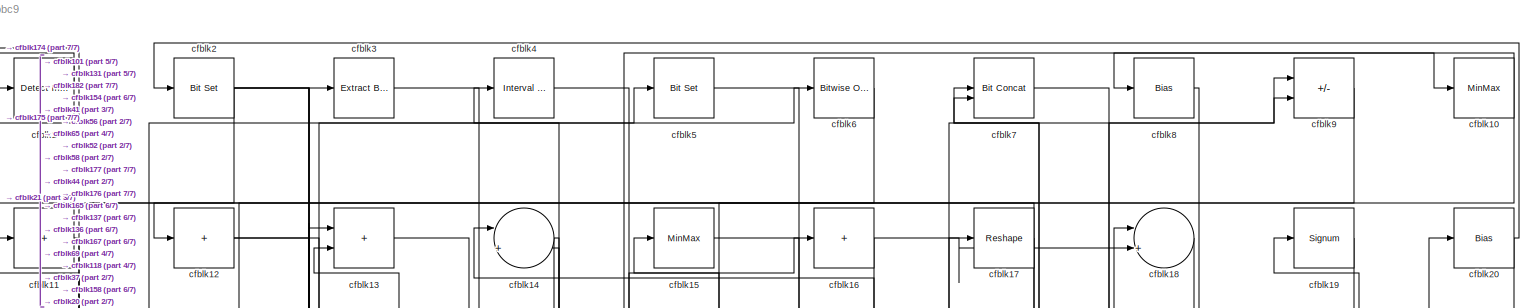
[diagram: root canvas - part 1/7, full width, top band]
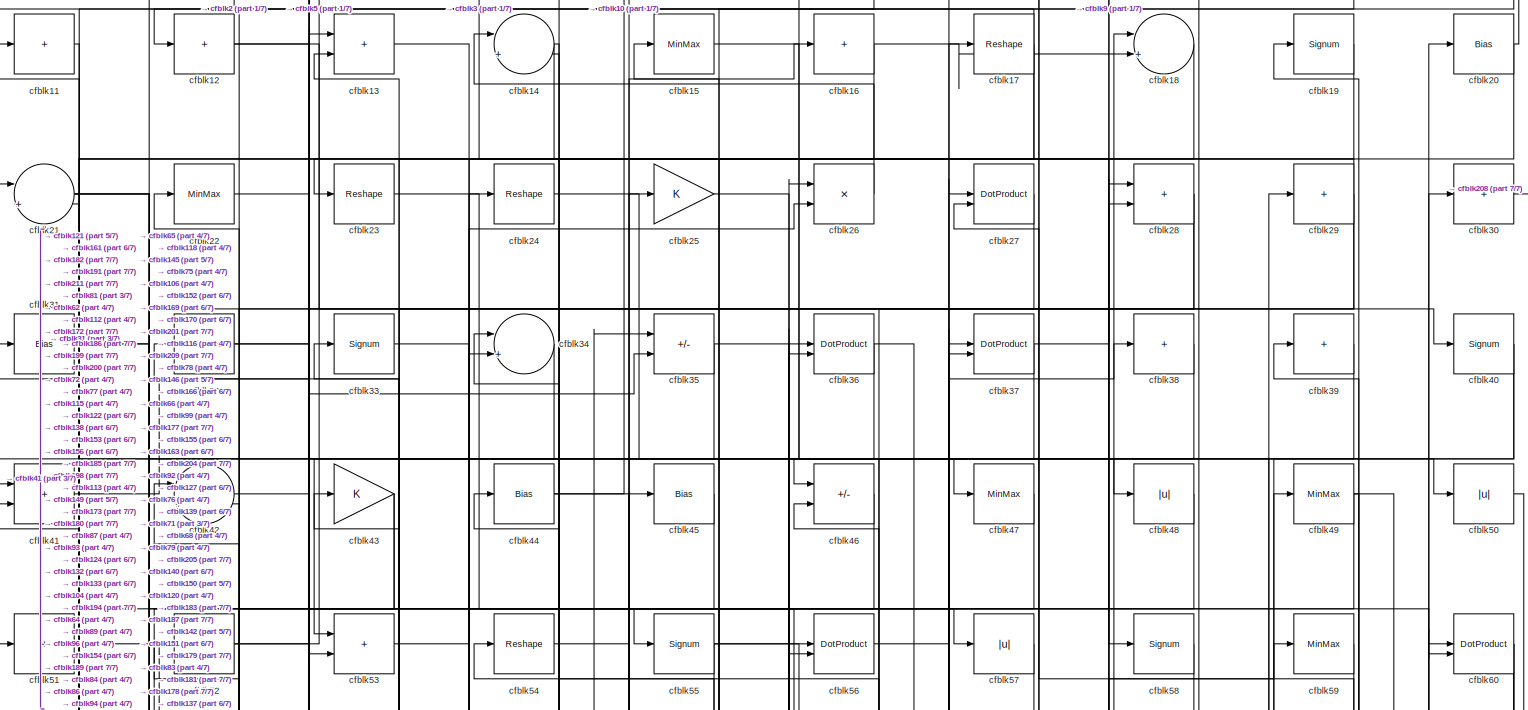
[diagram: root canvas - part 2/7, full width, top band]
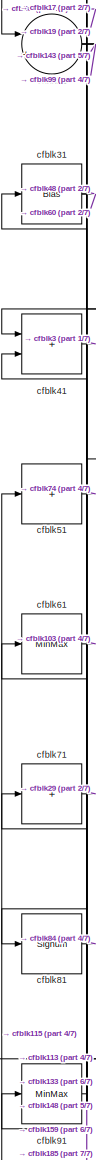
[diagram: root canvas - part 3/7, top left region]
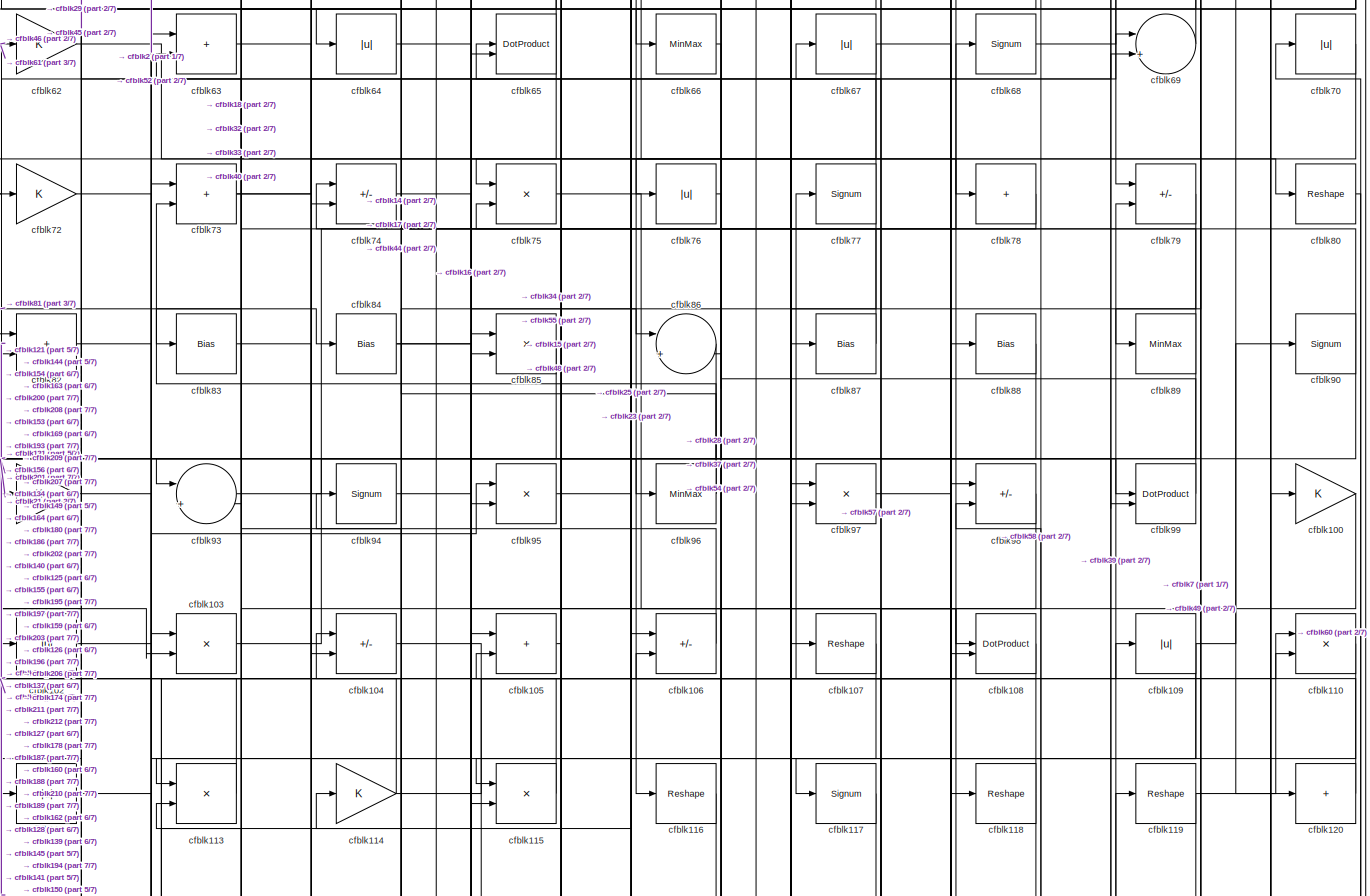
[diagram: root canvas - part 4/7, full width, middle band]
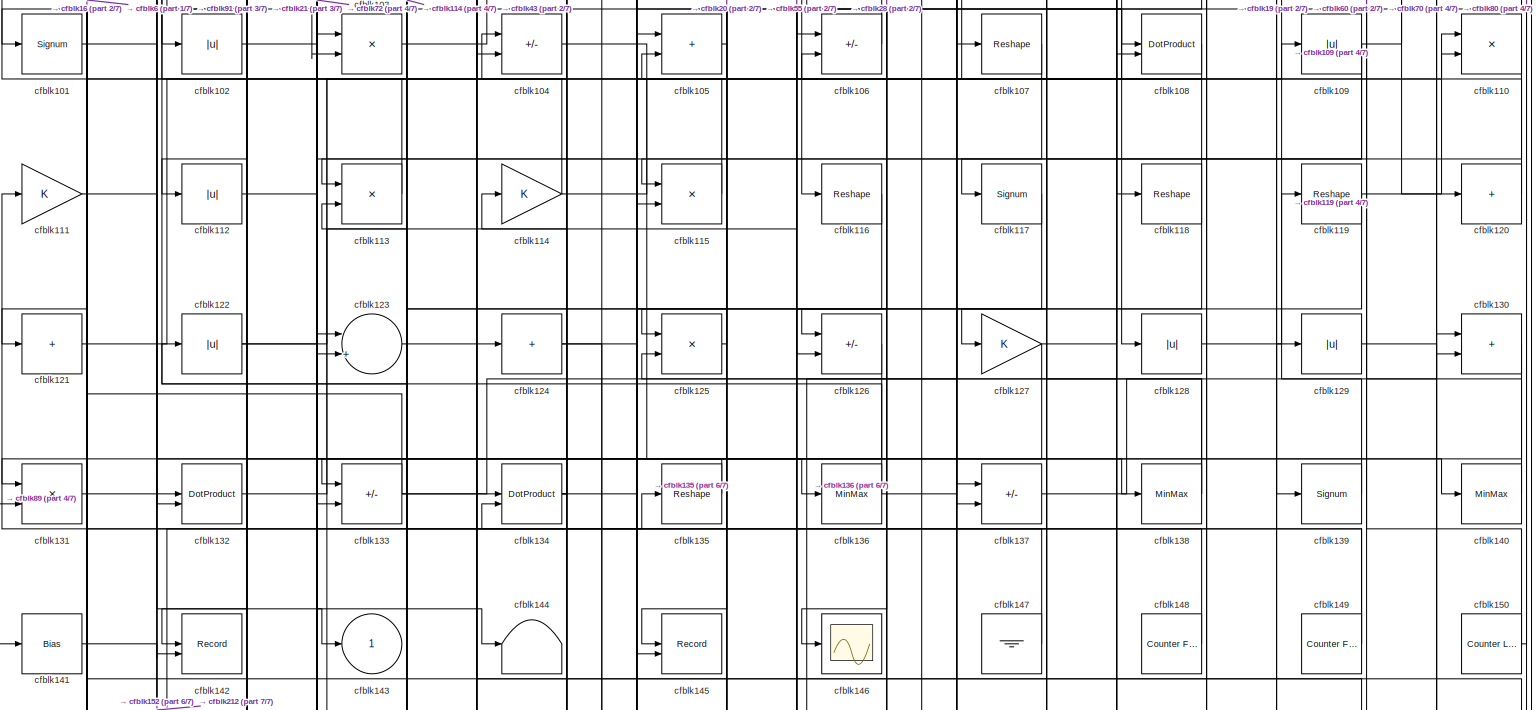
[diagram: root canvas - part 5/7, full width, middle band]
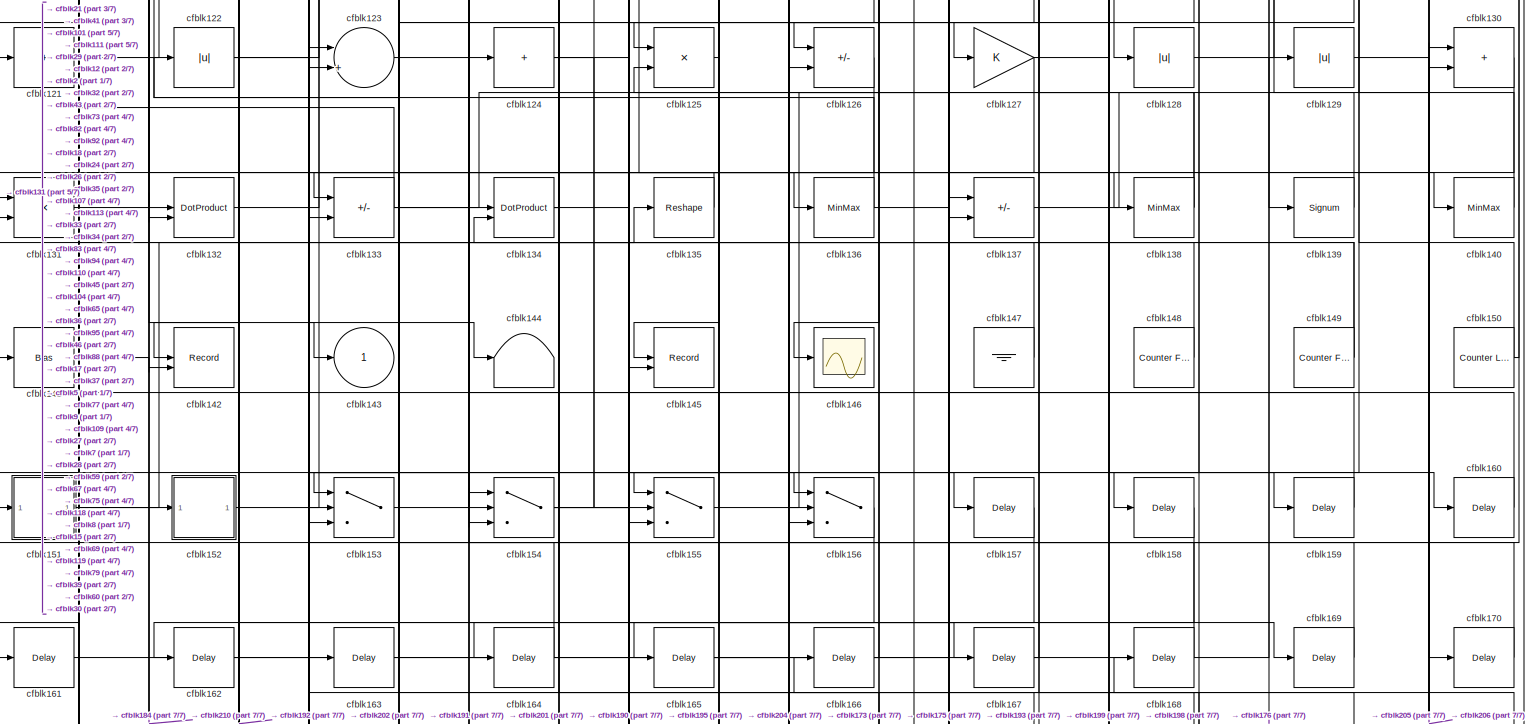
[diagram: root canvas - part 6/7, full width, middle band]
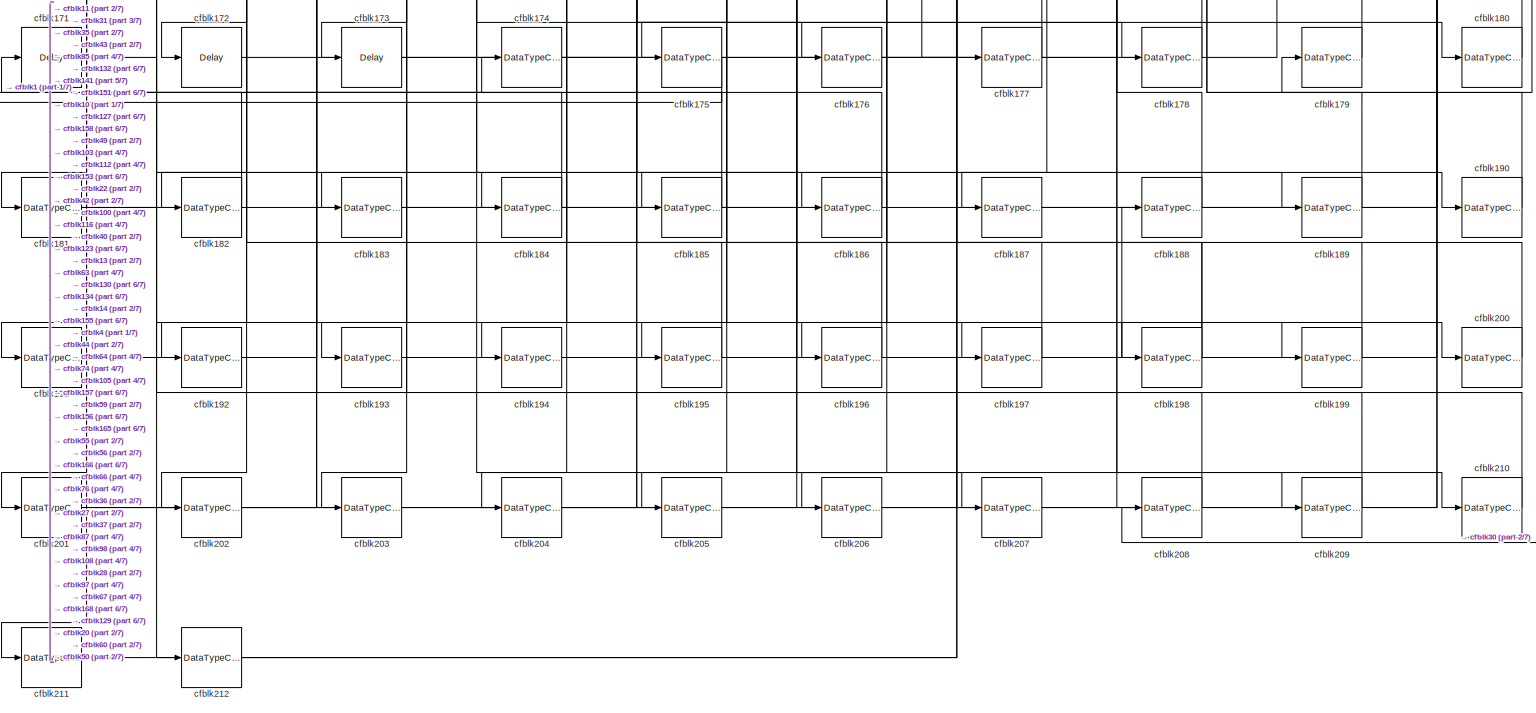
[diagram: root canvas - part 7/7, full width, bottom band]
MODEL slx_99fc0c3ebbc9
KIND model
CONFIG AbsTol = auto
CONFIG EnableMultiTasking = off
CONFIG FixedStep = auto
CONFIG MaxStep = auto
CONFIG MinStep = auto
CONFIG RelTol = 1e-3
CONFIG SampleTimeConstraint = Unconstrained
CONFIG SolverName = VariableStepAuto
CONFIG StartTime = 0.0
CONFIG StopTime = 10.0
BLOCK [Reference] cfblk1  REF=simulink/Logic and Bit
Operations/Detect
Increase
  LibrarySourceBlock = hdlsllib/Logic and Bit\nOperations/Detect\nIncrease
  SourceBlock = simulink/Logic and Bit\nOperations/Detect\nIncrease
  SourceType = Detect Increase
BLOCK [MinMax] cfblk10
BLOCK [Gain] cfblk100
BLOCK [Signum] cfblk101
BLOCK [Abs] cfblk102
  SaturateOnIntegerOverflow = off
BLOCK [Product] cfblk103
  Inputs = */
  RndMeth = Zero
  SaturateOnIntegerOverflow = on
BLOCK [Sum] cfblk104
  IconShape = rectangular
  Inputs = +-
BLOCK [Sum] cfblk105
  IconShape = rectangular
BLOCK [Sum] cfblk106
  IconShape = rectangular
  Inputs = +-
BLOCK [Reshape] cfblk107
BLOCK [DotProduct] cfblk108
  OutDataTypeStr = Inherit: Inherit via internal rule
BLOCK [Abs] cfblk109
  SaturateOnIntegerOverflow = off
BLOCK [Sum] cfblk11
  IconShape = rectangular
  Inputs = +
BLOCK [Product] cfblk110
  Inputs = */
  RndMeth = Zero
  SaturateOnIntegerOverflow = on
BLOCK [Gain] cfblk111
BLOCK [Abs] cfblk112
  SaturateOnIntegerOverflow = off
BLOCK [Product] cfblk113
  Inputs = */
  RndMeth = Zero
  SaturateOnIntegerOverflow = on
BLOCK [Gain] cfblk114
BLOCK [Product] cfblk115
  Inputs = */
  RndMeth = Zero
  SaturateOnIntegerOverflow = on
BLOCK [Reshape] cfblk116
BLOCK [Signum] cfblk117
BLOCK [Reshape] cfblk118
BLOCK [Reshape] cfblk119
BLOCK [Sum] cfblk12
  IconShape = rectangular
  Inputs = +
BLOCK [Sum] cfblk120
  IconShape = rectangular
  Inputs = +
BLOCK [Sum] cfblk121
  IconShape = rectangular
  Inputs = +
BLOCK [Abs] cfblk122
  SaturateOnIntegerOverflow = off
BLOCK [Sum] cfblk123
  Inputs = |++
BLOCK [Sum] cfblk124
  IconShape = rectangular
  Inputs = +
BLOCK [Product] cfblk125
  Inputs = */
  RndMeth = Zero
  SaturateOnIntegerOverflow = on
BLOCK [Sum] cfblk126
  IconShape = rectangular
  Inputs = +-
BLOCK [Gain] cfblk127
BLOCK [Abs] cfblk128
  SaturateOnIntegerOverflow = off
BLOCK [Abs] cfblk129
  SaturateOnIntegerOverflow = off
BLOCK [Sum] cfblk13
  IconShape = rectangular
BLOCK [Sum] cfblk130
  IconShape = rectangular
BLOCK [Product] cfblk131
  Inputs = */
  RndMeth = Zero
  SaturateOnIntegerOverflow = on
BLOCK [DotProduct] cfblk132
  OutDataTypeStr = Inherit: Inherit via internal rule
BLOCK [Sum] cfblk133
  IconShape = rectangular
  Inputs = +-
BLOCK [DotProduct] cfblk134
  OutDataTypeStr = Inherit: Inherit via internal rule
BLOCK [Reshape] cfblk135
BLOCK [MinMax] cfblk136
BLOCK [Sum] cfblk137
  IconShape = rectangular
  Inputs = +-
BLOCK [MinMax] cfblk138
BLOCK [Signum] cfblk139
BLOCK [Sum] cfblk14
  Inputs = |++
BLOCK [MinMax] cfblk140
BLOCK [Bias] cfblk141
  Bias = 0.0
  SaturateOnIntegerOverflow = off
BLOCK [Record] cfblk142
  CompatibilityTag = XY
  FileSettingsInternal = {"entries":[{"content":{"excelSettings":{"content":{},"type":"Streamout.ExcelSettings"}},"type":"Streamout.FileSettingStorage","uuid":""}],"packageUris":["http:\/\/schema.mathworks.com\/mf0\/streamout_blocks\/R2020a"],"version":"1.0"}
  Layout = [1 1]
  SignalsInternal = {"entries":[{"content":{"signals":[{"content":{"blockPath":[],"dimensions":[1],"domain":"","lineColor":"#a2142f","plots":[1],"port":1,"signalID":1193,"signalName":"XY Graph:1"},"type":"RecordBlkView.Signal","uuid":""},{"content":{"blockPath":[],"dimensions":[1],"domain":"","lineColor":"#139fff","plots":[1],"port":2,"signalID":1196,"signalName":"XY Graph:2"},"type":"RecordBlkView.Signal","uuid":""}...<+146ch>
  VisualizationBindings = {"xyplotplugin":{"info":[{"series":[{"bindingParametersList":[{"parameter":"X-Axis","signalID":1193,"signalName":"XY Graph:1"},{"parameter":"Y-Axis","signalID":1196,"signalName":"XY Graph:2"}],"seriesID":30784}],"subplotID":1}]}}
  st = -1
BLOCK [Outport] cfblk143
  VectorParamsAs1DForOutWhenUnconnected = off
BLOCK [Terminator] cfblk144
BLOCK [Record] cfblk145
  CompatibilityTag = XY
  FileSettingsInternal = {"entries":[{"content":{"excelSettings":{"content":{},"type":"Streamout.ExcelSettings"}},"type":"Streamout.FileSettingStorage","uuid":""}],"packageUris":["http:\/\/schema.mathworks.com\/mf0\/streamout_blocks\/R2020a"],"version":"1.0"}
  Layout = [1 1]
  SignalsInternal = {"entries":[{"content":{"signals":[{"content":{"blockPath":[],"dimensions":[1],"domain":"","lineColor":"#a2142f","plots":[1],"port":1,"signalID":1201,"signalName":"XY Graph:1"},"type":"RecordBlkView.Signal","uuid":""},{"content":{"blockPath":[],"dimensions":[1],"domain":"","lineColor":"#139fff","plots":[1],"port":2,"signalID":1204,"signalName":"XY Graph:2"},"type":"RecordBlkView.Signal","uuid":""}...<+146ch>
  VisualizationBindings = {"xyplotplugin":{"info":[{"series":[{"bindingParametersList":[{"parameter":"X-Axis","signalID":1201,"signalName":"XY Graph:1"},{"parameter":"Y-Axis","signalID":1204,"signalName":"XY Graph:2"}],"seriesID":31207}],"subplotID":1}]}}
  st = -1
BLOCK [Scope] cfblk146
  Floating = off
  NumInputPorts = 1
  ScopeSpecificationString = Simulink.scopes.TimeScopeBlockCfg('CurrentConfiguration', extmgr.ConfigurationSet(extmgr.Configuration('Core','General UI',true),extmgr.Configuration('Core','Source UI',true),extmgr.Configuration('Sources','WiredSimulink',true,'DataLoggingVariableName','ScopeData2','DataLoggingSaveFormat','Array','DataLoggingLimitDataPoints',true,'DataLoggingDecimation','1'),extmgr.Configuration('Visuals','Time Do...<+868ch>
BLOCK [Ground] cfblk147
BLOCK [Reference] cfblk148  REF=hdlsllib/Sources/Counter
Free-Running
  SourceBlock = hdlsllib/Sources/Counter\nFree-Running
  SourceType = Counter Free-Running
BLOCK [Reference] cfblk149  REF=hdlsllib/Sources/Counter
Free-Running
  SourceBlock = hdlsllib/Sources/Counter\nFree-Running
  SourceType = Counter Free-Running
BLOCK [MinMax] cfblk15
BLOCK [Reference] cfblk150  REF=hdlsllib/Sources/Counter
Limited
  SourceBlock = hdlsllib/Sources/Counter\nLimited
  SourceType = Counter Limited
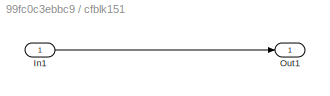
BLOCK [SubSystem] cfblk151
  LibrarySourceBlock = hdlsllib/Ports &\nSubsystems/Subsystem
BLOCK [Inport] cfblk151/In1
BLOCK [Outport] cfblk151/Out1
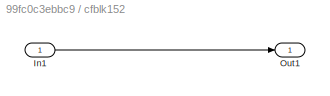
BLOCK [SubSystem] cfblk152
  LibrarySourceBlock = hdlsllib/Ports &\nSubsystems/Subsystem
BLOCK [Inport] cfblk152/In1
BLOCK [Outport] cfblk152/Out1
BLOCK [Switch] cfblk153
  InputSameDT = off
  SaturateOnIntegerOverflow = off
BLOCK [Switch] cfblk154
  InputSameDT = off
  SaturateOnIntegerOverflow = off
BLOCK [Switch] cfblk155
  InputSameDT = off
  SaturateOnIntegerOverflow = off
BLOCK [Switch] cfblk156
  InputSameDT = off
  SaturateOnIntegerOverflow = off
BLOCK [Delay] cfblk157
  InputPortMap = u0
  SampleTime = 1
BLOCK [Delay] cfblk158
  InputPortMap = u0
  SampleTime = 1
BLOCK [Delay] cfblk159
  InputPortMap = u0
  SampleTime = 1
BLOCK [Sum] cfblk16
  IconShape = rectangular
  Inputs = +
BLOCK [Delay] cfblk160
  InputPortMap = u0
  SampleTime = 1
BLOCK [Delay] cfblk161
  InputPortMap = u0
  SampleTime = 1
BLOCK [Delay] cfblk162
  InputPortMap = u0
  SampleTime = 1
BLOCK [Delay] cfblk163
  InputPortMap = u0
  SampleTime = 1
BLOCK [Delay] cfblk164
  InputPortMap = u0
  SampleTime = 1
BLOCK [Delay] cfblk165
  InputPortMap = u0
  SampleTime = 1
BLOCK [Delay] cfblk166
  InputPortMap = u0
  SampleTime = 1
BLOCK [Delay] cfblk167
  InputPortMap = u0
  SampleTime = 1
BLOCK [Delay] cfblk168
  InputPortMap = u0
  SampleTime = 1
BLOCK [Delay] cfblk169
  InputPortMap = u0
  SampleTime = 1
BLOCK [Reshape] cfblk17
BLOCK [Delay] cfblk170
  InputPortMap = u0
  SampleTime = 1
BLOCK [Delay] cfblk171
  InputPortMap = u0
  SampleTime = 1
BLOCK [Delay] cfblk172
  InputPortMap = u0
  SampleTime = 1
BLOCK [Delay] cfblk173
  InputPortMap = u0
  SampleTime = 1
BLOCK [DataTypeConversion] cfblk174
  OutDataTypeStr = uint8
  RndMeth = Floor
  SaturateOnIntegerOverflow = off
BLOCK [DataTypeConversion] cfblk175
  OutDataTypeStr = uint8
  RndMeth = Floor
  SaturateOnIntegerOverflow = off
BLOCK [DataTypeConversion] cfblk176
  OutDataTypeStr = uint8
  RndMeth = Floor
  SaturateOnIntegerOverflow = off
BLOCK [DataTypeConversion] cfblk177
  OutDataTypeStr = uint8
  RndMeth = Floor
  SaturateOnIntegerOverflow = off
BLOCK [DataTypeConversion] cfblk178
  OutDataTypeStr = uint8
  RndMeth = Floor
  SaturateOnIntegerOverflow = off
BLOCK [DataTypeConversion] cfblk179
  OutDataTypeStr = uint8
  RndMeth = Floor
  SaturateOnIntegerOverflow = off
BLOCK [Sum] cfblk18
  Inputs = |++
BLOCK [DataTypeConversion] cfblk180
  OutDataTypeStr = uint8
  RndMeth = Floor
  SaturateOnIntegerOverflow = off
BLOCK [DataTypeConversion] cfblk181
  RndMeth = Floor
  SaturateOnIntegerOverflow = off
BLOCK [DataTypeConversion] cfblk182
  OutDataTypeStr = uint8
  RndMeth = Floor
  SaturateOnIntegerOverflow = off
BLOCK [DataTypeConversion] cfblk183
  OutDataTypeStr = uint8
  RndMeth = Floor
  SaturateOnIntegerOverflow = off
BLOCK [DataTypeConversion] cfblk184
  OutDataTypeStr = uint8
  RndMeth = Floor
  SaturateOnIntegerOverflow = off
BLOCK [DataTypeConversion] cfblk185
  OutDataTypeStr = uint8
  RndMeth = Floor
  SaturateOnIntegerOverflow = off
BLOCK [DataTypeConversion] cfblk186
  OutDataTypeStr = uint8
  RndMeth = Floor
  SaturateOnIntegerOverflow = off
BLOCK [DataTypeConversion] cfblk187
  OutDataTypeStr = uint8
  RndMeth = Floor
  SaturateOnIntegerOverflow = off
BLOCK [DataTypeConversion] cfblk188
  OutDataTypeStr = uint8
  RndMeth = Floor
  SaturateOnIntegerOverflow = off
BLOCK [DataTypeConversion] cfblk189
  OutDataTypeStr = uint8
  RndMeth = Floor
  SaturateOnIntegerOverflow = off
BLOCK [Signum] cfblk19
BLOCK [DataTypeConversion] cfblk190
  OutDataTypeStr = uint8
  RndMeth = Floor
  SaturateOnIntegerOverflow = off
BLOCK [DataTypeConversion] cfblk191
  OutDataTypeStr = uint8
  RndMeth = Floor
  SaturateOnIntegerOverflow = off
BLOCK [DataTypeConversion] cfblk192
  OutDataTypeStr = uint8
  RndMeth = Floor
  SaturateOnIntegerOverflow = off
BLOCK [DataTypeConversion] cfblk193
  RndMeth = Floor
  SaturateOnIntegerOverflow = off
BLOCK [DataTypeConversion] cfblk194
  OutDataTypeStr = uint8
  RndMeth = Floor
  SaturateOnIntegerOverflow = off
BLOCK [DataTypeConversion] cfblk195
  OutDataTypeStr = uint8
  RndMeth = Floor
  SaturateOnIntegerOverflow = off
BLOCK [DataTypeConversion] cfblk196
  OutDataTypeStr = uint8
  RndMeth = Floor
  SaturateOnIntegerOverflow = off
BLOCK [DataTypeConversion] cfblk197
  OutDataTypeStr = uint8
  RndMeth = Floor
  SaturateOnIntegerOverflow = off
BLOCK [DataTypeConversion] cfblk198
  RndMeth = Floor
  SaturateOnIntegerOverflow = off
BLOCK [DataTypeConversion] cfblk199
  OutDataTypeStr = uint8
  RndMeth = Floor
  SaturateOnIntegerOverflow = off
BLOCK [Reference] cfblk2  REF=simulink/Logic and Bit
Operations/Bit Set
  LibrarySourceBlock = hdlsllib/Logic and Bit\nOperations/Bit Set
  SourceBlock = simulink/Logic and Bit\nOperations/Bit Set
  SourceType = Bit Set
BLOCK [Bias] cfblk20
  Bias = 0.0
  SaturateOnIntegerOverflow = off
BLOCK [DataTypeConversion] cfblk200
  OutDataTypeStr = uint8
  RndMeth = Floor
  SaturateOnIntegerOverflow = off
BLOCK [DataTypeConversion] cfblk201
  RndMeth = Floor
  SaturateOnIntegerOverflow = off
BLOCK [DataTypeConversion] cfblk202
  OutDataTypeStr = uint8
  RndMeth = Floor
  SaturateOnIntegerOverflow = off
BLOCK [DataTypeConversion] cfblk203
  OutDataTypeStr = uint8
  RndMeth = Floor
  SaturateOnIntegerOverflow = off
BLOCK [DataTypeConversion] cfblk204
  OutDataTypeStr = uint8
  RndMeth = Floor
  SaturateOnIntegerOverflow = off
BLOCK [DataTypeConversion] cfblk205
  OutDataTypeStr = uint8
  RndMeth = Floor
  SaturateOnIntegerOverflow = off
BLOCK [DataTypeConversion] cfblk206
  OutDataTypeStr = uint8
  RndMeth = Floor
  SaturateOnIntegerOverflow = off
BLOCK [DataTypeConversion] cfblk207
  OutDataTypeStr = uint8
  RndMeth = Floor
  SaturateOnIntegerOverflow = off
BLOCK [DataTypeConversion] cfblk208
  OutDataTypeStr = uint8
  RndMeth = Floor
  SaturateOnIntegerOverflow = off
BLOCK [DataTypeConversion] cfblk209
  OutDataTypeStr = uint8
  RndMeth = Floor
  SaturateOnIntegerOverflow = off
BLOCK [Sum] cfblk21
  Inputs = |++
BLOCK [DataTypeConversion] cfblk210
  OutDataTypeStr = uint8
  RndMeth = Floor
  SaturateOnIntegerOverflow = off
BLOCK [DataTypeConversion] cfblk211
  OutDataTypeStr = uint8
  RndMeth = Floor
  SaturateOnIntegerOverflow = off
BLOCK [DataTypeConversion] cfblk212
  OutDataTypeStr = uint8
  RndMeth = Floor
  SaturateOnIntegerOverflow = off
BLOCK [MinMax] cfblk22
BLOCK [Reshape] cfblk23
BLOCK [Reshape] cfblk24
BLOCK [Gain] cfblk25
BLOCK [Product] cfblk26
  Inputs = */
  RndMeth = Zero
  SaturateOnIntegerOverflow = on
BLOCK [DotProduct] cfblk27
  OutDataTypeStr = Inherit: Inherit via internal rule
BLOCK [Sum] cfblk28
  IconShape = rectangular
BLOCK [Sum] cfblk29
  IconShape = rectangular
  Inputs = +
BLOCK [Reference] cfblk3  REF=simulink/Logic and Bit
Operations/Extract Bits
  LibrarySourceBlock = hdlsllib/Logic and Bit\nOperations/Extract Bits
  SourceBlock = simulink/Logic and Bit\nOperations/Extract Bits
  SourceType = Extract Bits
BLOCK [Sum] cfblk30
  IconShape = rectangular
  Inputs = +
BLOCK [Bias] cfblk31
  Bias = 0.0
  SaturateOnIntegerOverflow = off
BLOCK [MinMax] cfblk32
BLOCK [Signum] cfblk33
BLOCK [Sum] cfblk34
  Inputs = |++
BLOCK [Sum] cfblk35
  IconShape = rectangular
  Inputs = +-
BLOCK [DotProduct] cfblk36
  OutDataTypeStr = Inherit: Inherit via internal rule
BLOCK [DotProduct] cfblk37
  OutDataTypeStr = Inherit: Inherit via internal rule
BLOCK [Sum] cfblk38
  IconShape = rectangular
  Inputs = +
BLOCK [Sum] cfblk39
  IconShape = rectangular
  Inputs = +
BLOCK [Reference] cfblk4  REF=hdlsllib/Logic and Bit
Operations/Interval Test
  SourceBlock = hdlsllib/Logic and Bit\nOperations/Interval Test
  SourceType = Interval Test
BLOCK [Signum] cfblk40
BLOCK [Sum] cfblk41
  IconShape = rectangular
BLOCK [Sum] cfblk42
  Inputs = |++
BLOCK [Gain] cfblk43
BLOCK [Bias] cfblk44
  Bias = 0.0
  SaturateOnIntegerOverflow = off
BLOCK [Bias] cfblk45
  Bias = 0.0
  SaturateOnIntegerOverflow = off
BLOCK [Sum] cfblk46
  IconShape = rectangular
  Inputs = +-
BLOCK [MinMax] cfblk47
BLOCK [Abs] cfblk48
  SaturateOnIntegerOverflow = off
BLOCK [MinMax] cfblk49
BLOCK [Reference] cfblk5  REF=simulink/Logic and Bit
Operations/Bit Set
  LibrarySourceBlock = hdlsllib/Logic and Bit\nOperations/Bit Set
  SourceBlock = simulink/Logic and Bit\nOperations/Bit Set
  SourceType = Bit Set
BLOCK [Abs] cfblk50
  SaturateOnIntegerOverflow = off
BLOCK [Sum] cfblk51
  IconShape = rectangular
  Inputs = +
BLOCK [Sum] cfblk52
  IconShape = rectangular
  Inputs = +
BLOCK [Sum] cfblk53
  IconShape = rectangular
BLOCK [Reshape] cfblk54
BLOCK [Signum] cfblk55
BLOCK [DotProduct] cfblk56
  OutDataTypeStr = Inherit: Inherit via internal rule
BLOCK [Abs] cfblk57
  SaturateOnIntegerOverflow = off
BLOCK [Signum] cfblk58
BLOCK [MinMax] cfblk59
BLOCK [Reference] cfblk6  REF=simulink/Logic and Bit
Operations/Bitwise
Operator
  LibrarySourceBlock = hdlsllib/Logic and Bit\nOperations/Bitwise\nOperator
  SourceBlock = simulink/Logic and Bit\nOperations/Bitwise\nOperator
  SourceType = Bitwise Operator
BLOCK [DotProduct] cfblk60
  OutDataTypeStr = Inherit: Inherit via internal rule
BLOCK [MinMax] cfblk61
BLOCK [Gain] cfblk62
BLOCK [Sum] cfblk63
  IconShape = rectangular
BLOCK [Abs] cfblk64
  SaturateOnIntegerOverflow = off
BLOCK [DotProduct] cfblk65
  OutDataTypeStr = Inherit: Inherit via internal rule
BLOCK [MinMax] cfblk66
BLOCK [Abs] cfblk67
  SaturateOnIntegerOverflow = off
BLOCK [Signum] cfblk68
BLOCK [Sum] cfblk69
  Inputs = |++
BLOCK [Reference] cfblk7  REF=hdlsllib/Logic and Bit
Operations/Bit Concat
  SourceBlock = hdlsllib/Logic and Bit\nOperations/Bit Concat
  SourceType = Bit Concat
BLOCK [Abs] cfblk70
  SaturateOnIntegerOverflow = off
BLOCK [Sum] cfblk71
  IconShape = rectangular
  Inputs = +
BLOCK [Gain] cfblk72
BLOCK [Sum] cfblk73
  IconShape = rectangular
BLOCK [Sum] cfblk74
  IconShape = rectangular
  Inputs = +-
BLOCK [Product] cfblk75
  Inputs = */
  RndMeth = Zero
  SaturateOnIntegerOverflow = on
BLOCK [Abs] cfblk76
  SaturateOnIntegerOverflow = off
BLOCK [Signum] cfblk77
BLOCK [Sum] cfblk78
  IconShape = rectangular
  Inputs = +
BLOCK [Sum] cfblk79
  IconShape = rectangular
  Inputs = +-
BLOCK [Bias] cfblk8
  Bias = 0.0
  SaturateOnIntegerOverflow = off
BLOCK [Reshape] cfblk80
BLOCK [Signum] cfblk81
BLOCK [Sum] cfblk82
  IconShape = rectangular
BLOCK [Bias] cfblk83
  Bias = 0.0
  SaturateOnIntegerOverflow = off
BLOCK [Bias] cfblk84
  Bias = 0.0
  SaturateOnIntegerOverflow = off
BLOCK [Product] cfblk85
  Inputs = */
  RndMeth = Zero
  SaturateOnIntegerOverflow = on
BLOCK [Sum] cfblk86
  Inputs = |++
BLOCK [Bias] cfblk87
  Bias = 0.0
  SaturateOnIntegerOverflow = off
BLOCK [Bias] cfblk88
  Bias = 0.0
  SaturateOnIntegerOverflow = off
BLOCK [MinMax] cfblk89
BLOCK [Sum] cfblk9
  IconShape = rectangular
  Inputs = +-
BLOCK [Signum] cfblk90
BLOCK [MinMax] cfblk91
BLOCK [Gain] cfblk92
BLOCK [Sum] cfblk93
  Inputs = |++
BLOCK [Signum] cfblk94
BLOCK [Product] cfblk95
  Inputs = */
  RndMeth = Zero
  SaturateOnIntegerOverflow = on
BLOCK [MinMax] cfblk96
BLOCK [Product] cfblk97
  Inputs = */
  RndMeth = Zero
  SaturateOnIntegerOverflow = on
BLOCK [Sum] cfblk98
  IconShape = rectangular
  Inputs = +-
BLOCK [DotProduct] cfblk99
  OutDataTypeStr = Inherit: Inherit via internal rule
LINE cfblk100:1 -> cfblk193:1
LINE cfblk101:1 -> cfblk152:1
LINE cfblk102:1 -> cfblk95:1
LINE cfblk103:1 -> cfblk68:1
LINE cfblk104:1 -> cfblk140:1
LINE cfblk105:1 -> cfblk195:1
LINE cfblk106:1 -> cfblk32:1
LINE cfblk107:1 -> cfblk153:1
LINE cfblk108:1 -> cfblk106:2
NET cfblk109:1 -> cfblk127:1, cfblk155:1, cfblk90:1
NET cfblk10:1 -> cfblk182:1, cfblk8:1
LINE cfblk110:1 -> cfblk117:1
LINE cfblk111:1 -> cfblk136:1
LINE cfblk112:1 -> cfblk200:1
LINE cfblk113:1 -> cfblk71:1
NET cfblk114:1 -> cfblk82:2, cfblk88:1
LINE cfblk115:1 -> cfblk51:1
LINE cfblk116:1 -> cfblk203:1
LINE cfblk117:1 -> cfblk82:1
NET cfblk118:1 -> cfblk126:2, cfblk15:1
NET cfblk119:1 -> cfblk110:1, cfblk145:2
LINE cfblk11:1 -> cfblk181:1
LINE cfblk120:1 -> cfblk77:1
LINE cfblk121:1 -> cfblk109:1
NET cfblk122:1 -> cfblk18:1, cfblk35:2
LINE cfblk123:1 -> cfblk190:1
NET cfblk124:1 -> cfblk155:2, cfblk157:1
LINE cfblk125:1 -> cfblk65:1
LINE cfblk126:1 -> cfblk133:1
NET cfblk127:1 -> cfblk192:1, cfblk59:1
LINE cfblk128:1 -> cfblk79:2
LINE cfblk129:1 -> cfblk170:1
NET cfblk12:1 -> cfblk138:1, cfblk40:1
LINE cfblk130:1 -> cfblk204:1
LINE cfblk131:1 -> cfblk6:1
LINE cfblk132:1 -> cfblk24:1
NET cfblk133:1 -> cfblk28:1, cfblk34:2, cfblk41:2
NET cfblk134:1 -> cfblk104:1, cfblk110:2, cfblk94:1
LINE cfblk135:1 -> cfblk131:1
NET cfblk136:1 -> cfblk122:1, cfblk9:1
LINE cfblk137:1 -> cfblk30:1
NET cfblk138:1 -> cfblk125:2, cfblk27:2
LINE cfblk139:1 -> cfblk119:1
LINE cfblk13:1 -> cfblk178:1
LINE cfblk140:1 -> cfblk39:1
LINE cfblk141:1 -> cfblk212:1
LINE cfblk147:1 -> cfblk111:1
LINE cfblk148:1 -> cfblk91:1
NET cfblk149:1 -> cfblk114:1, cfblk43:1
NET cfblk14:1 -> cfblk104:2, cfblk194:1
NET cfblk150:1 -> cfblk19:1, cfblk70:1
LINE cfblk151/In1:1 -> cfblk151/Out1:1
NET cfblk151:1 -> cfblk135:1, cfblk184:1
LINE cfblk152/In1:1 -> cfblk152/Out1:1
LINE cfblk152:1 -> cfblk26:1
LINE cfblk153:1 -> cfblk26:2
NET cfblk154:1 -> cfblk167:1, cfblk35:1, cfblk45:1
LINE cfblk155:1 -> cfblk17:1
LINE cfblk156:1 -> cfblk162:1
LINE cfblk157:1 -> cfblk175:1
LINE cfblk158:1 -> cfblk202:1
LINE cfblk159:1 -> cfblk21:2
LINE cfblk15:1 -> cfblk139:1
LINE cfblk160:1 -> cfblk134:1
LINE cfblk161:1 -> cfblk133:2
LINE cfblk162:1 -> cfblk69:2
LINE cfblk163:1 -> cfblk37:2
LINE cfblk164:1 -> cfblk73:1
LINE cfblk165:1 -> cfblk199:1
LINE cfblk166:1 -> cfblk46:2
LINE cfblk167:1 -> cfblk7:2
LINE cfblk168:1 -> cfblk154:1
LINE cfblk169:1 -> cfblk113:2
NET cfblk16:1 -> cfblk121:1, cfblk18:2
LINE cfblk170:1 -> cfblk36:1
LINE cfblk171:1 -> cfblk183:1
LINE cfblk172:1 -> cfblk28:2
LINE cfblk173:1 -> cfblk155:3
LINE cfblk174:1 -> cfblk87:1
LINE cfblk175:1 -> cfblk1:1
LINE cfblk176:1 -> cfblk129:1
LINE cfblk177:1 -> cfblk4:1
LINE cfblk178:1 -> cfblk67:1
LINE cfblk179:1 -> cfblk13:1
NET cfblk17:1 -> cfblk12:1, cfblk41:1, cfblk64:1
LINE cfblk180:1 -> cfblk13:2
NET cfblk181:1 -> cfblk197:1, cfblk36:2
LINE cfblk182:1 -> cfblk11:1
LINE cfblk183:1 -> cfblk60:1
LINE cfblk184:1 -> cfblk171:1
LINE cfblk185:1 -> cfblk31:1
LINE cfblk186:1 -> cfblk22:1
LINE cfblk187:1 -> cfblk20:1
LINE cfblk188:1 -> cfblk98:1
LINE cfblk189:1 -> cfblk98:2
LINE cfblk18:1 -> cfblk93:1
LINE cfblk190:1 -> cfblk168:1
LINE cfblk191:1 -> cfblk123:1
LINE cfblk192:1 -> cfblk123:2
NET cfblk193:1 -> cfblk156:3, cfblk188:1
LINE cfblk194:1 -> cfblk100:1
LINE cfblk195:1 -> cfblk134:2
LINE cfblk196:1 -> cfblk105:1
LINE cfblk197:1 -> cfblk105:2
NET cfblk198:1 -> cfblk166:1, cfblk37:1
LINE cfblk199:1 -> cfblk42:1
LINE cfblk19:1 -> cfblk81:1
LINE cfblk1:1 -> cfblk174:1
LINE cfblk200:1 -> cfblk42:2
NET cfblk201:1 -> cfblk103:1, cfblk153:2, cfblk56:1
LINE cfblk202:1 -> cfblk85:1
LINE cfblk203:1 -> cfblk85:2
LINE cfblk204:1 -> cfblk27:1
LINE cfblk205:1 -> cfblk130:1
LINE cfblk206:1 -> cfblk130:2
LINE cfblk207:1 -> cfblk108:2
LINE cfblk208:1 -> cfblk63:1
LINE cfblk209:1 -> cfblk63:2
NET cfblk20:1 -> cfblk145:1, cfblk2:1
LINE cfblk210:1 -> cfblk132:1
LINE cfblk211:1 -> cfblk97:1
LINE cfblk212:1 -> cfblk97:2
NET cfblk21:1 -> cfblk143:1, cfblk99:1, cfblk99:2
LINE cfblk22:1 -> cfblk185:1
LINE cfblk23:1 -> cfblk116:1
LINE cfblk24:1 -> cfblk47:1
LINE cfblk25:1 -> cfblk106:1
LINE cfblk26:1 -> cfblk14:1
LINE cfblk27:1 -> cfblk53:2
NET cfblk28:1 -> cfblk113:1, cfblk146:1
NET cfblk29:1 -> cfblk132:2, cfblk23:1, cfblk72:1
NET cfblk2:1 -> cfblk154:3, cfblk21:1, cfblk56:2, cfblk65:2
LINE cfblk30:1 -> cfblk208:1
NET cfblk31:1 -> cfblk48:1, cfblk60:2
NET cfblk32:1 -> cfblk156:2, cfblk50:1
LINE cfblk33:1 -> cfblk124:1
LINE cfblk34:1 -> cfblk161:1
NET cfblk35:1 -> cfblk169:1, cfblk191:1
NET cfblk36:1 -> cfblk177:1, cfblk46:1
NET cfblk37:1 -> cfblk66:1, cfblk9:2
LINE cfblk38:1 -> cfblk53:1
LINE cfblk39:1 -> cfblk79:1
LINE cfblk3:1 -> cfblk58:1
NET cfblk40:1 -> cfblk173:1, cfblk93:2
LINE cfblk41:1 -> cfblk3:1
LINE cfblk42:1 -> cfblk198:1
NET cfblk43:1 -> cfblk153:3, cfblk211:1
NET cfblk44:1 -> cfblk10:1, cfblk189:1
LINE cfblk45:1 -> cfblk112:1
LINE cfblk46:1 -> cfblk62:1
LINE cfblk47:1 -> cfblk55:1
LINE cfblk48:1 -> cfblk75:1
NET cfblk49:1 -> cfblk120:1, cfblk172:1, cfblk89:1
LINE cfblk4:1 -> cfblk176:1
LINE cfblk50:1 -> cfblk179:1
LINE cfblk51:1 -> cfblk74:2
NET cfblk52:1 -> cfblk115:2, cfblk5:1
LINE cfblk53:1 -> cfblk57:1
LINE cfblk54:1 -> cfblk86:1
NET cfblk55:1 -> cfblk142:1, cfblk209:1, cfblk78:1
LINE cfblk56:1 -> cfblk38:1
LINE cfblk57:1 -> cfblk92:1
LINE cfblk58:1 -> cfblk76:1
LINE cfblk59:1 -> cfblk205:1
LINE cfblk5:1 -> cfblk137:1
NET cfblk60:1 -> cfblk142:2, cfblk151:1, cfblk83:1
LINE cfblk61:1 -> cfblk103:2
LINE cfblk62:1 -> cfblk107:1
LINE cfblk63:1 -> cfblk207:1
LINE cfblk64:1 -> cfblk180:1
NET cfblk65:1 -> cfblk102:1, cfblk34:1
LINE cfblk66:1 -> cfblk196:1
NET cfblk67:1 -> cfblk125:1, cfblk160:1
LINE cfblk68:1 -> cfblk49:1
LINE cfblk69:1 -> cfblk7:1
LINE cfblk6:1 -> cfblk101:1
LINE cfblk70:1 -> cfblk86:2
LINE cfblk71:1 -> cfblk29:1
LINE cfblk72:1 -> cfblk144:1
NET cfblk73:1 -> cfblk69:1, cfblk80:1
LINE cfblk74:1 -> cfblk186:1
LINE cfblk75:1 -> cfblk128:1
LINE cfblk76:1 -> cfblk206:1
NET cfblk77:1 -> cfblk137:2, cfblk52:1
LINE cfblk78:1 -> cfblk75:2
LINE cfblk79:1 -> cfblk164:1
LINE cfblk7:1 -> cfblk118:1
LINE cfblk80:1 -> cfblk141:1
LINE cfblk81:1 -> cfblk84:1
LINE cfblk82:1 -> cfblk163:1
LINE cfblk83:1 -> cfblk156:1
NET cfblk84:1 -> cfblk108:1, cfblk16:1
LINE cfblk85:1 -> cfblk201:1
LINE cfblk86:1 -> cfblk95:2
LINE cfblk87:1 -> cfblk33:1
LINE cfblk88:1 -> cfblk126:1
NET cfblk89:1 -> cfblk131:2, cfblk44:1
LINE cfblk8:1 -> cfblk158:1
NET cfblk90:1 -> cfblk115:1, cfblk74:1
LINE cfblk91:1 -> cfblk61:1
LINE cfblk92:1 -> cfblk154:2
LINE cfblk93:1 -> cfblk96:1
LINE cfblk94:1 -> cfblk25:1
LINE cfblk95:1 -> cfblk159:1
NET cfblk96:1 -> cfblk14:2, cfblk73:2
LINE cfblk97:1 -> cfblk210:1
LINE cfblk98:1 -> cfblk187:1
LINE cfblk99:1 -> cfblk54:1
LINE cfblk9:1 -> cfblk165:1
note: NET lines group one-source signal fan-out (src -> all destinations, sorted); 1:1 wires keep LINE
